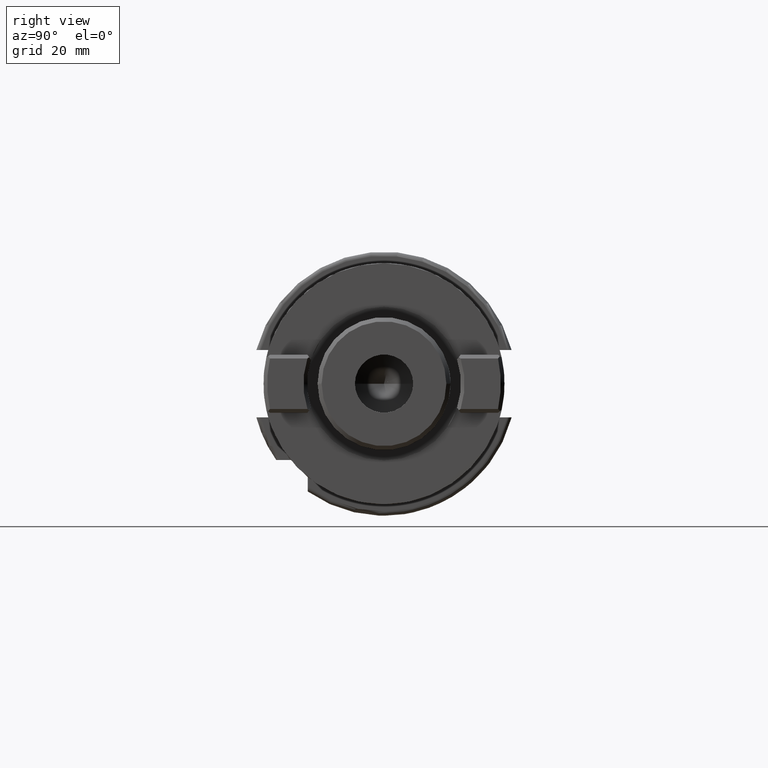
[diagram: clean part render]
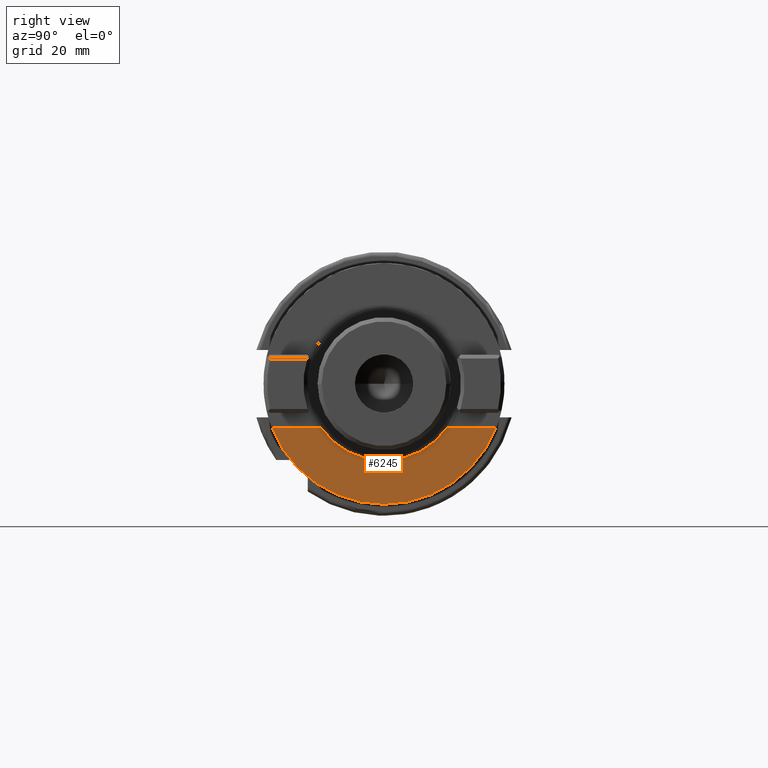
[diagram: same view with one face highlighted and labeled with its STEP entity id]
A machine part, right view. The second image highlights one B-rep face of the part: STEP entity #6245.
In plain terms, the highlighted planar face has unit normal (-1, 0, 0).
Its self-contained STEP definition (entity closure, byte-faithful):
#4360=CARTESIAN_POINT('',(0.E0,1.4E1,0.E0));
#4361=DIRECTION('',(0.E0,1.E0,0.E0));
#4362=DIRECTION('',(1.E0,0.E0,0.E0));
#4363=AXIS2_PLACEMENT_3D('',#4360,#4361,#4362);
#4631=CARTESIAN_POINT('',(0.E0,1.4E1,0.E0));
#4632=DIRECTION('',(0.E0,1.E0,0.E0));
#4633=DIRECTION('',(3.645689655172E-1,0.E0,9.311763900474E-1));
#4634=AXIS2_PLACEMENT_3D('',#4631,#4632,#4633);
#4889=CARTESIAN_POINT('',(0.E0,1.4E1,0.E0));
#4890=DIRECTION('',(0.E0,1.E0,0.E0));
#4891=DIRECTION('',(5.714864864865E-1,0.E0,8.206114767436E-1));
#4892=AXIS2_PLACEMENT_3D('',#4889,#4890,#4891);
#4894=CARTESIAN_POINT('',(0.E0,1.4E1,0.E0));
#4895=DIRECTION('',(0.E0,1.E0,0.E0));
#4896=DIRECTION('',(1.E0,0.E0,0.E0));
#4897=AXIS2_PLACEMENT_3D('',#4894,#4895,#4896);
#4899=DIRECTION('',(0.E0,0.E0,1.E0));
#4900=VECTOR('',#4899,1.182280299162E1);
#4901=CARTESIAN_POINT('',(1.05725E1,1.4E1,-2.700411531137E1));
#4902=LINE('',#4901,#4900);
#4903=DIRECTION('',(0.E0,0.E0,1.E0));
#4904=VECTOR('',#4903,1.182280299162E1);
#4905=CARTESIAN_POINT('',(1.05725E1,1.4E1,1.518131231976E1));
#4906=LINE('',#4905,#4904);
#5264=CARTESIAN_POINT('',(2.9E1,1.4E1,0.E0));
#5265=CARTESIAN_POINT('',(1.05725E1,1.4E1,-2.700411531137E1));
#5266=VERTEX_POINT('',#5264);
#5267=VERTEX_POINT('',#5265);
#5272=CARTESIAN_POINT('',(1.05725E1,1.4E1,2.700411531137E1));
#5273=VERTEX_POINT('',#5272);
#5284=CARTESIAN_POINT('',(1.05725E1,1.4E1,1.518131231976E1));
#5285=CARTESIAN_POINT('',(1.85E1,1.4E1,0.E0));
#5286=VERTEX_POINT('',#5284);
#5287=VERTEX_POINT('',#5285);
#5288=CARTESIAN_POINT('',(1.05725E1,1.4E1,-1.518131231976E1));
#5289=VERTEX_POINT('',#5288);
#6232=CARTESIAN_POINT('',(1.05725E1,1.4E1,-3.482917893342E1));
#6233=DIRECTION('',(0.E0,-1.E0,0.E0));
#6234=DIRECTION('',(1.E0,0.E0,0.E0));
#6235=AXIS2_PLACEMENT_3D('',#6232,#6233,#6234);
#6236=PLANE('',#6235);
#6237=ORIENTED_EDGE('',*,*,#5955,.T.);
#6238=ORIENTED_EDGE('',*,*,#6177,.T.);
#6239=ORIENTED_EDGE('',*,*,#6227,.F.);
#6240=ORIENTED_EDGE('',*,*,#5622,.F.);
#6241=ORIENTED_EDGE('',*,*,#5897,.F.);
#6242=ORIENTED_EDGE('',*,*,#6212,.F.);
#6243=EDGE_LOOP('',(#6237,#6238,#6239,#6240,#6241,#6242));
#6244=FACE_OUTER_BOUND('',#6243,.F.);
#6245=ADVANCED_FACE('',(#6244),#6236,.F.);
#4364=CIRCLE('',#4363,2.9E1);
#4635=CIRCLE('',#4634,2.9E1);
#4893=CIRCLE('',#4892,1.85E1);
#4898=CIRCLE('',#4897,1.85E1);
#5622=EDGE_CURVE('',#5266,#5267,#4364,.T.);
#5897=EDGE_CURVE('',#5273,#5266,#4635,.T.);
#5955=EDGE_CURVE('',#5286,#5287,#4893,.T.);
#6177=EDGE_CURVE('',#5287,#5289,#4898,.T.);
#6212=EDGE_CURVE('',#5286,#5273,#4906,.T.);
#6227=EDGE_CURVE('',#5267,#5289,#4902,.T.);